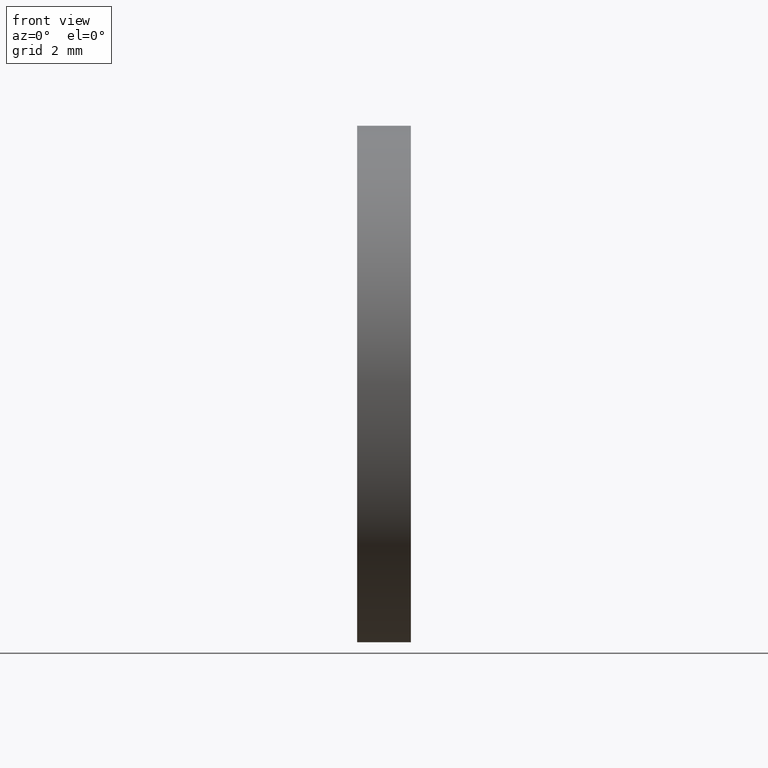
[diagram: clean part render]
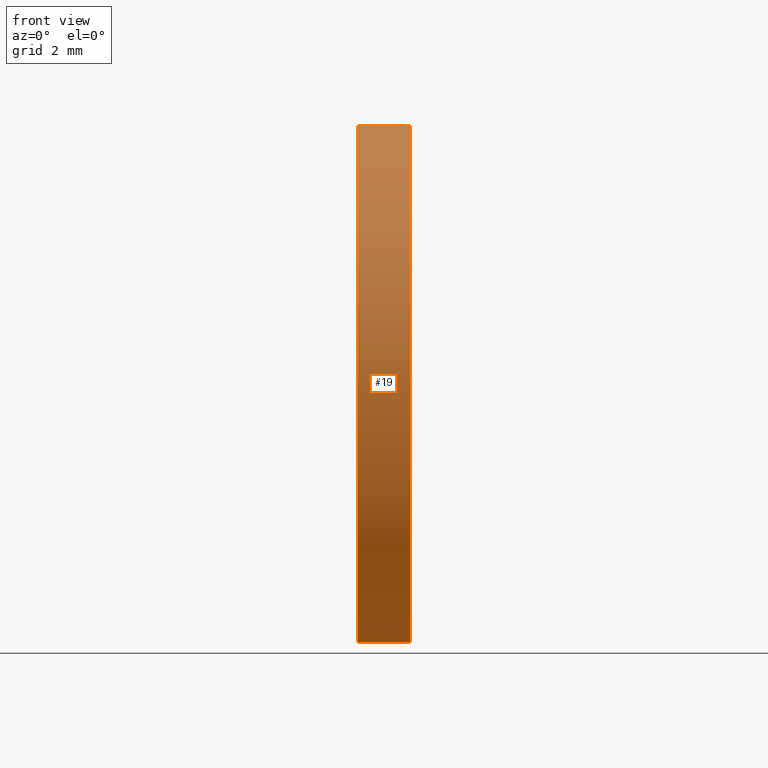
[diagram: same view with one face highlighted and labeled with its STEP entity id]
A machine part, front view. The second image highlights one B-rep face of the part: STEP entity #19.
In plain terms, the highlighted cylindrical surface (partial cylindrical patch) has radius 9.779 mm, axis along (-1, 0, 0).
Its self-contained STEP definition (entity closure, byte-faithful):
#1 = EDGE_LOOP ( 'NONE', ( #2, #3, #13, #14 ) ) ;
#2 = ORIENTED_EDGE ( 'NONE', *, *, #224, .F. ) ;
#3 = ORIENTED_EDGE ( 'NONE', *, *, #12, .T. ) ;
#12 = EDGE_CURVE ( 'NONE', #222, #249, #42, .T. ) ;
#13 = ORIENTED_EDGE ( 'NONE', *, *, #230, .T. ) ;
#14 = ORIENTED_EDGE ( 'NONE', *, *, #26, .F. ) ;
#19 = ADVANCED_FACE ( 'NONE', ( #62 ), #81, .T. ) ;
#26 = EDGE_CURVE ( 'NONE', #225, #228, #76, .T. ) ;
#39 = DIRECTION ( 'NONE',  ( 0.0000000000000000000, 0.0000000000000000000, 1.000000000000000000 ) ) ;
#42 = CIRCLE ( 'NONE', #48, 0.3850000000000000100 ) ;
#46 = DIRECTION ( 'NONE',  ( -1.000000000000000000, 0.0000000000000000000, 0.0000000000000000000 ) ) ;
#47 = CARTESIAN_POINT ( 'NONE',  ( 0.07999999999999996000, 0.0000000000000000000, 0.0000000000000000000 ) ) ;
#48 = AXIS2_PLACEMENT_3D ( 'NONE', #47, #46, #39 ) ;
#62 = FACE_OUTER_BOUND ( 'NONE', #1, .T. ) ;
#68 = DIRECTION ( 'NONE',  ( 0.0000000000000000000, 0.0000000000000000000, 1.000000000000000000 ) ) ;
#69 = DIRECTION ( 'NONE',  ( -1.000000000000000000, 0.0000000000000000000, 0.0000000000000000000 ) ) ;
#70 = CARTESIAN_POINT ( 'NONE',  ( 0.0000000000000000000, 0.0000000000000000000, 0.0000000000000000000 ) ) ;
#71 = AXIS2_PLACEMENT_3D ( 'NONE', #70, #69, #68 ) ;
#72 = CARTESIAN_POINT ( 'NONE',  ( -1.721125226614714300, 0.0000000000000000000, 0.0000000000000000000 ) ) ;
#76 = CIRCLE ( 'NONE', #71, 0.3850000000000000100 ) ;
#78 = DIRECTION ( 'NONE',  ( 0.0000000000000000000, 0.0000000000000000000, 1.000000000000000000 ) ) ;
#79 = DIRECTION ( 'NONE',  ( -1.000000000000000000, 0.0000000000000000000, 0.0000000000000000000 ) ) ;
#80 = AXIS2_PLACEMENT_3D ( 'NONE', #72, #79, #78 ) ;
#81 = CYLINDRICAL_SURFACE ( 'NONE', #80, 0.3850000000000000100 ) ;
#83 = DIRECTION ( 'NONE',  ( -1.000000000000000000, 0.0000000000000000000, 0.0000000000000000000 ) ) ;
#84 = LINE ( 'NONE', #87, #85 ) ;
#85 = VECTOR ( 'NONE', #83, 39.37007874015748100 ) ;
#86 = CARTESIAN_POINT ( 'NONE',  ( 0.0000000000000000000, 4.714890176717309300E-017, -0.3850000000000000100 ) ) ;
#87 = CARTESIAN_POINT ( 'NONE',  ( -1.721125226614714300, 4.714890176717309300E-017, -0.3850000000000000100 ) ) ;
#88 = CARTESIAN_POINT ( 'NONE',  ( 0.07999999999999996000, 4.714890176717309300E-017, -0.3850000000000000100 ) ) ;
#92 = DIRECTION ( 'NONE',  ( -1.000000000000000000, 0.0000000000000000000, 0.0000000000000000000 ) ) ;
#93 = VECTOR ( 'NONE', #92, 39.37007874015748100 ) ;
#94 = CARTESIAN_POINT ( 'NONE',  ( -1.721125226614714300, 0.0000000000000000000, 0.3850000000000000100 ) ) ;
#95 = LINE ( 'NONE', #94, #93 ) ;
#100 = CARTESIAN_POINT ( 'NONE',  ( 0.0000000000000000000, 0.0000000000000000000, 0.3850000000000000100 ) ) ;
#135 = CARTESIAN_POINT ( 'NONE',  ( 0.07999999999999996000, 0.0000000000000000000, 0.3850000000000000100 ) ) ;
#222 = VERTEX_POINT ( 'NONE', #88 ) ;
#224 = EDGE_CURVE ( 'NONE', #222, #225, #84, .T. ) ;
#225 = VERTEX_POINT ( 'NONE', #86 ) ;
#228 = VERTEX_POINT ( 'NONE', #100 ) ;
#230 = EDGE_CURVE ( 'NONE', #249, #228, #95, .T. ) ;
#249 = VERTEX_POINT ( 'NONE', #135 ) ;